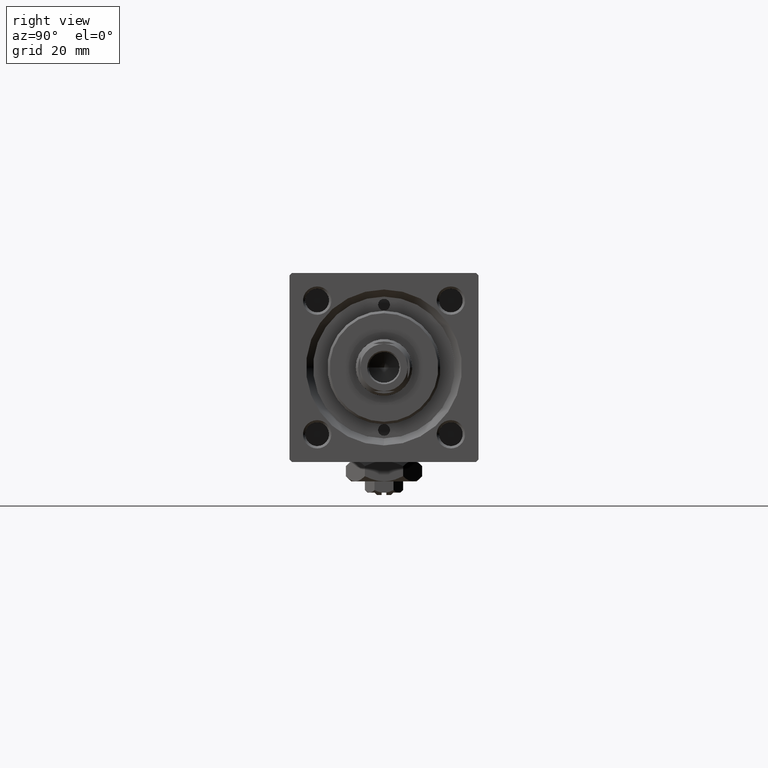
[diagram: clean part render]
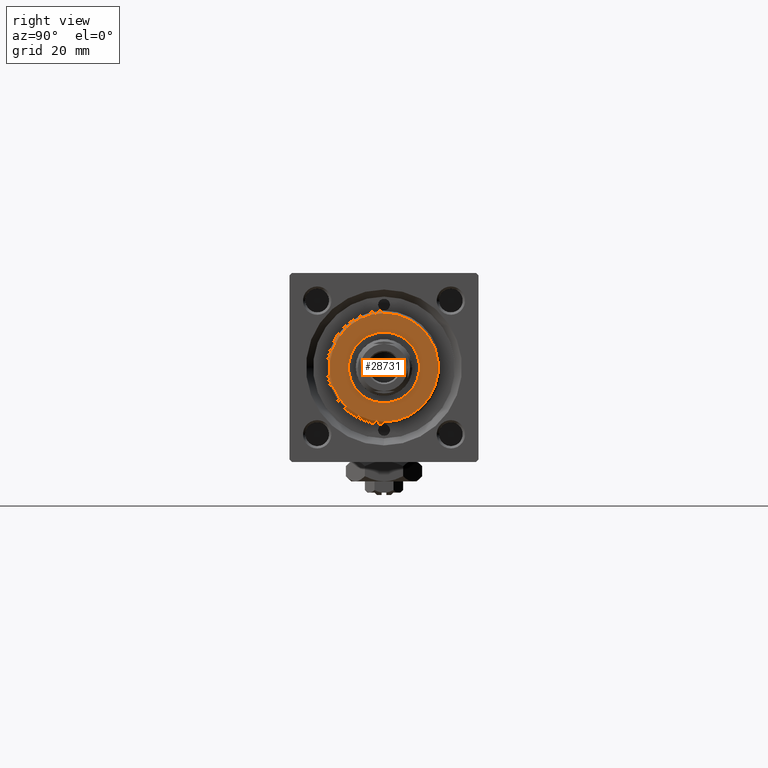
[diagram: same view with one face highlighted and labeled with its STEP entity id]
A machine part, right view. The second image highlights one B-rep face of the part: STEP entity #28731.
In plain terms, the highlighted planar face has unit normal (1, 0, 0).
Its self-contained STEP definition (entity closure, byte-faithful):
#1009 = CIRCLE ( 'NONE', #7739, 7.500000000000000888 ) ;
#4140 = CARTESIAN_POINT ( 'NONE',  ( 11.49999999999999645, 1.438959988998139963E-15, 35.70000000000000284 ) ) ;
#7739 = AXIS2_PLACEMENT_3D ( 'NONE', #32886, #12937, #28940 ) ;
#8893 = ORIENTED_EDGE ( 'NONE', *, *, #22826, .T. ) ;
#8901 = CARTESIAN_POINT ( 'NONE',  ( -11.49999999999999645, 0.000000000000000000, 35.70000000000000284 ) ) ;
#9030 = ORIENTED_EDGE ( 'NONE', *, *, #41716, .F. ) ;
#9525 = FACE_OUTER_BOUND ( 'NONE', #29958, .T. ) ;
#12709 = PLANE ( 'NONE',  #29905 ) ;
#12937 = DIRECTION ( 'NONE',  ( 0.000000000000000000, 0.000000000000000000, 1.000000000000000000 ) ) ;
#13005 = VERTEX_POINT ( 'NONE', #8901 ) ;
#13858 = VERTEX_POINT ( 'NONE', #34053 ) ;
#15367 = CARTESIAN_POINT ( 'NONE',  ( 0.000000000000000000, 0.000000000000000000, 35.70000000000000284 ) ) ;
#16012 = CARTESIAN_POINT ( 'NONE',  ( 7.500000000000000888, 0.000000000000000000, 35.70000000000000284 ) ) ;
#16637 = FACE_BOUND ( 'NONE', #30544, .T. ) ;
#18106 = AXIS2_PLACEMENT_3D ( 'NONE', #15367, #35059, #47414 ) ;
#22826 = EDGE_CURVE ( 'NONE', #13005, #43437, #42240, .T. ) ;
#23698 = ORIENTED_EDGE ( 'NONE', *, *, #27453, .T. ) ;
#25395 = CIRCLE ( 'NONE', #50551, 7.500000000000000888 ) ;
#25547 = DIRECTION ( 'NONE',  ( 1.000000000000000000, 0.000000000000000000, -0.000000000000000000 ) ) ;
#26029 = DIRECTION ( 'NONE',  ( 0.000000000000000000, 0.000000000000000000, 1.000000000000000000 ) ) ;
#27453 = EDGE_CURVE ( 'NONE', #43437, #13005, #28155, .T. ) ;
#28155 = CIRCLE ( 'NONE', #18106, 11.49999999999999645 ) ;
#28731 = ADVANCED_FACE ( 'NONE', ( #16637, #9525 ), #12709, .T. ) ;
#28940 = DIRECTION ( 'NONE',  ( 1.000000000000000000, 0.000000000000000000, 0.000000000000000000 ) ) ;
#29905 = AXIS2_PLACEMENT_3D ( 'NONE', #48946, #33167, #25547 ) ;
#29958 = EDGE_LOOP ( 'NONE', ( #8893, #23698 ) ) ;
#29961 = CARTESIAN_POINT ( 'NONE',  ( 0.000000000000000000, 0.000000000000000000, 35.70000000000000284 ) ) ;
#30544 = EDGE_LOOP ( 'NONE', ( #31749, #9030 ) ) ;
#31749 = ORIENTED_EDGE ( 'NONE', *, *, #41799, .F. ) ;
#32886 = CARTESIAN_POINT ( 'NONE',  ( 0.000000000000000000, 0.000000000000000000, 35.70000000000000284 ) ) ;
#33118 = VERTEX_POINT ( 'NONE', #16012 ) ;
#33167 = DIRECTION ( 'NONE',  ( 0.000000000000000000, 0.000000000000000000, 1.000000000000000000 ) ) ;
#34053 = CARTESIAN_POINT ( 'NONE',  ( -7.500000000000000888, 9.184850993605149917E-16, 35.70000000000000284 ) ) ;
#34929 = CARTESIAN_POINT ( 'NONE',  ( 0.000000000000000000, 0.000000000000000000, 35.70000000000000284 ) ) ;
#35059 = DIRECTION ( 'NONE',  ( 0.000000000000000000, 0.000000000000000000, 1.000000000000000000 ) ) ;
#38102 = DIRECTION ( 'NONE',  ( 1.000000000000000000, 0.000000000000000000, 0.000000000000000000 ) ) ;
#39912 = DIRECTION ( 'NONE',  ( 0.000000000000000000, 0.000000000000000000, 1.000000000000000000 ) ) ;
#41716 = EDGE_CURVE ( 'NONE', #13858, #33118, #1009, .T. ) ;
#41799 = EDGE_CURVE ( 'NONE', #33118, #13858, #25395, .T. ) ;
#42240 = CIRCLE ( 'NONE', #48154, 11.49999999999999645 ) ;
#43437 = VERTEX_POINT ( 'NONE', #4140 ) ;
#47414 = DIRECTION ( 'NONE',  ( 1.000000000000000000, 0.000000000000000000, 0.000000000000000000 ) ) ;
#48154 = AXIS2_PLACEMENT_3D ( 'NONE', #34929, #39912, #51490 ) ;
#48946 = CARTESIAN_POINT ( 'NONE',  ( 0.000000000000000000, 0.000000000000000000, 35.70000000000000284 ) ) ;
#50551 = AXIS2_PLACEMENT_3D ( 'NONE', #29961, #26029, #38102 ) ;
#51490 = DIRECTION ( 'NONE',  ( 1.000000000000000000, 0.000000000000000000, 0.000000000000000000 ) ) ;